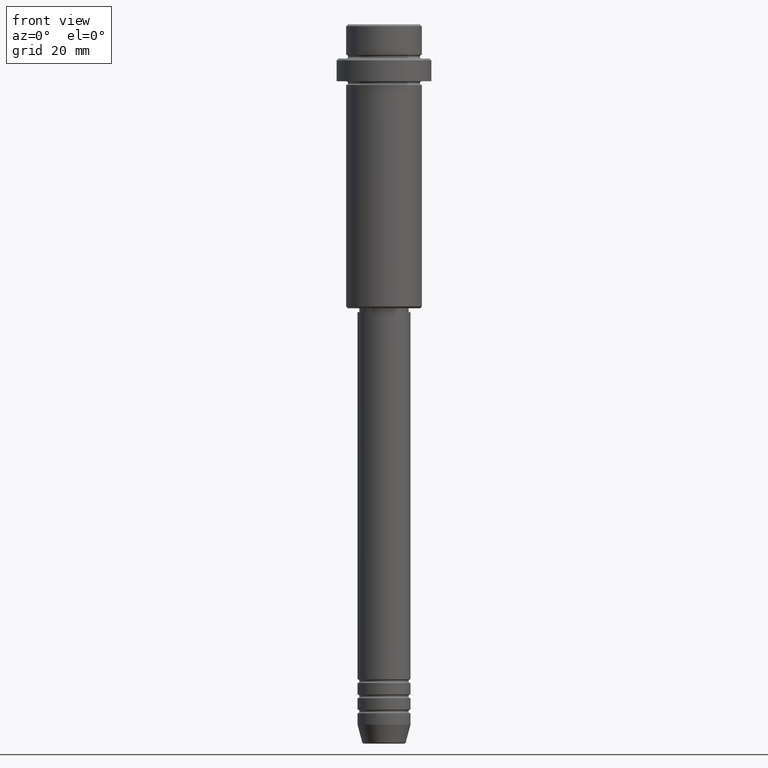
[diagram: clean part render]
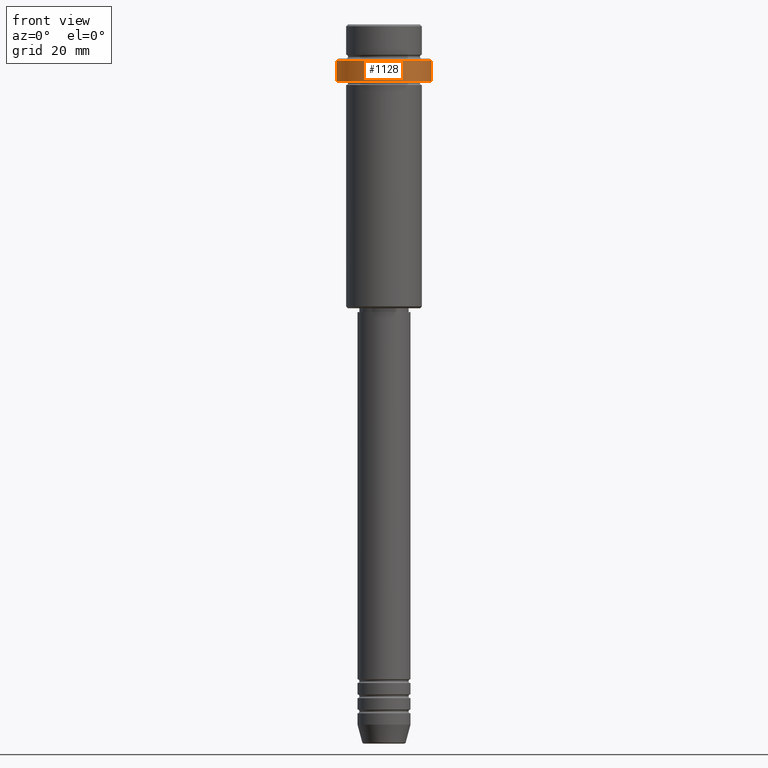
[diagram: same view with one face highlighted and labeled with its STEP entity id]
A machine part, front view. The second image highlights one B-rep face of the part: STEP entity #1128.
In plain terms, the highlighted cylindrical surface (partial cylindrical patch) has radius 12.5 mm, axis along (-0, -0, 1).
Its self-contained STEP definition (entity closure, byte-faithful):
#4 = EDGE_CURVE ( 'NONE', #1371, #303, #1388, .T. ) ;
#17 = DIRECTION ( 'NONE',  ( 0.000000000000000000, 0.000000000000000000, -1.000000000000000000 ) ) ;
#35 = DIRECTION ( 'NONE',  ( 1.000000000000000000, 0.000000000000000000, 0.000000000000000000 ) ) ;
#97 = VERTEX_POINT ( 'NONE', #489 ) ;
#113 = CARTESIAN_POINT ( 'NONE',  ( 0.000000000000000000, 0.000000000000000000, -9.500000000000007105 ) ) ;
#213 = DIRECTION ( 'NONE',  ( 1.000000000000000000, 0.000000000000000000, 0.000000000000000000 ) ) ;
#235 = DIRECTION ( 'NONE',  ( -0.000000000000000000, -0.000000000000000000, 1.000000000000000000 ) ) ;
#248 = ORIENTED_EDGE ( 'NONE', *, *, #739, .T. ) ;
#255 = CYLINDRICAL_SURFACE ( 'NONE', #498, 12.50000000000000000 ) ;
#256 = ORIENTED_EDGE ( 'NONE', *, *, #372, .F. ) ;
#266 = VECTOR ( 'NONE', #625, 1000.000000000000000 ) ;
#274 = CIRCLE ( 'NONE', #1089, 12.50000000000000000 ) ;
#303 = VERTEX_POINT ( 'NONE', #1228 ) ;
#319 = CARTESIAN_POINT ( 'NONE',  ( 0.000000000000000000, 0.000000000000000000, -15.00000000000000178 ) ) ;
#372 = EDGE_CURVE ( 'NONE', #1371, #1258, #994, .T. ) ;
#437 = CARTESIAN_POINT ( 'NONE',  ( -12.50000000000000000, 1.530808498934191521E-15, 0.000000000000000000 ) ) ;
#472 = DIRECTION ( 'NONE',  ( 1.000000000000000000, 0.000000000000000000, 0.000000000000000000 ) ) ;
#489 = CARTESIAN_POINT ( 'NONE',  ( 12.50000000000000000, 0.000000000000000000, -9.500000000000007105 ) ) ;
#498 = AXIS2_PLACEMENT_3D ( 'NONE', #577, #1336, #472 ) ;
#577 = CARTESIAN_POINT ( 'NONE',  ( 0.000000000000000000, 0.000000000000000000, 0.000000000000000000 ) ) ;
#625 = DIRECTION ( 'NONE',  ( -0.000000000000000000, -0.000000000000000000, 1.000000000000000000 ) ) ;
#649 = CARTESIAN_POINT ( 'NONE',  ( 12.50000000000000000, 0.000000000000000000, 0.000000000000000000 ) ) ;
#726 = CARTESIAN_POINT ( 'NONE',  ( -12.50000000000000000, 1.530808498934191521E-15, -15.00000000000000178 ) ) ;
#739 = EDGE_CURVE ( 'NONE', #303, #97, #1174, .T. ) ;
#780 = VECTOR ( 'NONE', #879, 1000.000000000000000 ) ;
#847 = ORIENTED_EDGE ( 'NONE', *, *, #1107, .T. ) ;
#879 = DIRECTION ( 'NONE',  ( -0.000000000000000000, -0.000000000000000000, 1.000000000000000000 ) ) ;
#892 = FACE_OUTER_BOUND ( 'NONE', #1379, .T. ) ;
#994 = LINE ( 'NONE', #437, #780 ) ;
#1015 = AXIS2_PLACEMENT_3D ( 'NONE', #319, #235, #213 ) ;
#1089 = AXIS2_PLACEMENT_3D ( 'NONE', #113, #17, #35 ) ;
#1107 = EDGE_CURVE ( 'NONE', #97, #1258, #274, .T. ) ;
#1128 = ADVANCED_FACE ( 'NONE', ( #892 ), #255, .T. ) ;
#1174 = LINE ( 'NONE', #649, #266 ) ;
#1221 = ORIENTED_EDGE ( 'NONE', *, *, #4, .T. ) ;
#1228 = CARTESIAN_POINT ( 'NONE',  ( 12.50000000000000000, 0.000000000000000000, -15.00000000000000178 ) ) ;
#1258 = VERTEX_POINT ( 'NONE', #1263 ) ;
#1263 = CARTESIAN_POINT ( 'NONE',  ( -12.50000000000000000, 1.530808498934191521E-15, -9.500000000000007105 ) ) ;
#1336 = DIRECTION ( 'NONE',  ( -0.000000000000000000, -0.000000000000000000, 1.000000000000000000 ) ) ;
#1371 = VERTEX_POINT ( 'NONE', #726 ) ;
#1379 = EDGE_LOOP ( 'NONE', ( #256, #1221, #248, #847 ) ) ;
#1388 = CIRCLE ( 'NONE', #1015, 12.50000000000000000 ) ;